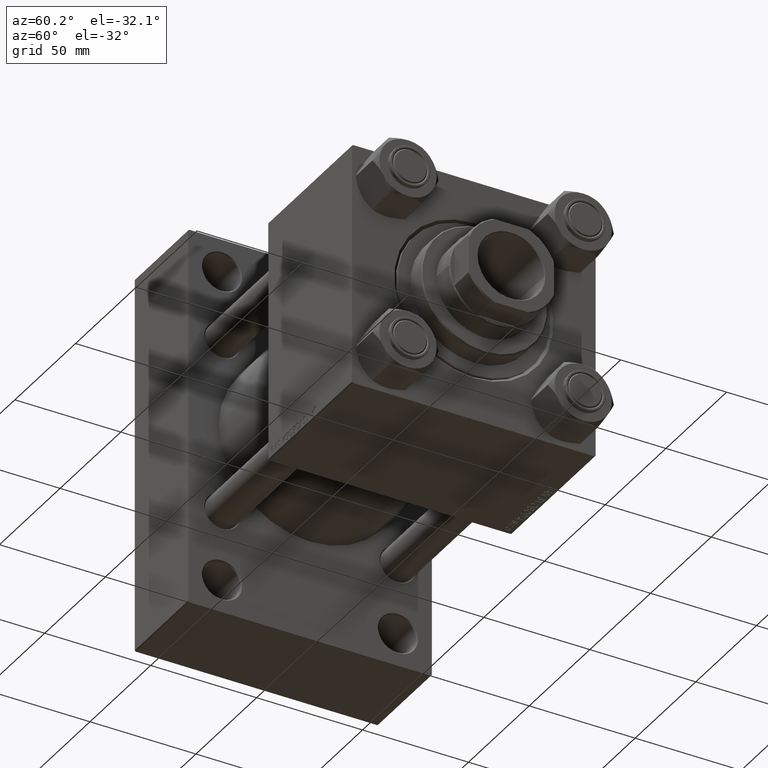
[diagram: clean part render]
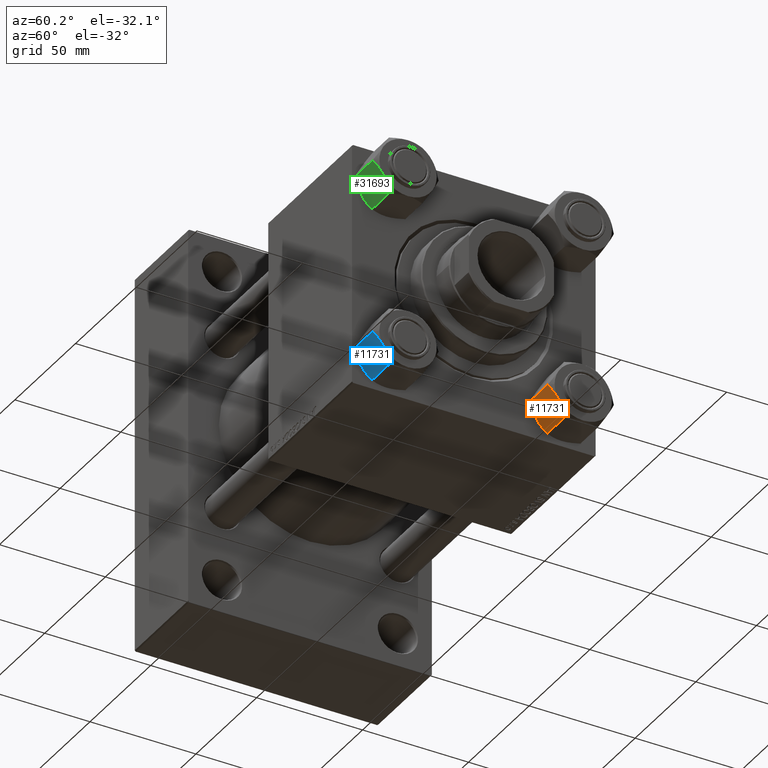
[diagram: same view with three faces highlighted in distinct colors, each labeled with its STEP entity id]
A machine part, auxiliary view with three faces highlighted in distinct colors.
Their STEP definitions:

[orange] entity #11731 — the highlighted planar face has unit normal (0, 0.866, 0.5).
#196 = ORIENTED_EDGE ( 'NONE', *, *, #36864, .F. ) ;
#669 = B_SPLINE_CURVE_WITH_KNOTS ( 'NONE', 3,
 ( #4511, #36553, #28643, #13105, #44208, #6219, #13615, #13355 ),
 .UNSPECIFIED., .F., .F.,
 ( 4, 2, 2, 4 ),
 ( 0.007890825462474418753, 0.01181022244528552589, 0.01376992093669107686, 0.01572961942809662783 ),
 .UNSPECIFIED. ) ;
#2532 = FACE_OUTER_BOUND ( 'NONE', #39255, .T. ) ;
#2647 = VERTEX_POINT ( 'NONE', #9838 ) ;
#2695 = EDGE_CURVE ( 'NONE', #14322, #46245, #34271, .T. ) ;
#2709 = DIRECTION ( 'NONE',  ( -0.000000000000000000, -0.000000000000000000, 1.000000000000000000 ) ) ;
#2737 = ORIENTED_EDGE ( 'NONE', *, *, #24244, .F. ) ;
#2991 = CARTESIAN_POINT ( 'NONE',  ( 15.52647173767731736, 0.1619957022865213259, -2.000000000000000000 ) ) ;
#3117 = ORIENTED_EDGE ( 'NONE', *, *, #7679, .F. ) ;
#3380 = DIRECTION ( 'NONE',  ( -0.4999999999999999445, 0.8660254037844387076, 0.000000000000000000 ) ) ;
#3491 = CARTESIAN_POINT ( 'NONE',  ( 14.92760668674624469, 1.199260397376465725, -1.411989271640069710 ) ) ;
#4511 = CARTESIAN_POINT ( 'NONE',  ( 11.71499999999999808, 6.763658403556465082, 0.000000000000000000 ) ) ;
#4770 = CARTESIAN_POINT ( 'NONE',  ( 8.502393313253767460, 12.32805640973646710, -16.58801072835993295 ) ) ;
#6219 = CARTESIAN_POINT ( 'NONE',  ( 8.506059550806631009, 12.32170630002228506, -1.434462921875004460 ) ) ;
#7679 = EDGE_CURVE ( 'NONE', #39784, #44668, #17502, .T. ) ;
#7861 = ORIENTED_EDGE ( 'NONE', *, *, #2695, .F. ) ;
#8161 = LINE ( 'NONE', #27777, #29406 ) ;
#8523 = VERTEX_POINT ( 'NONE', #20737 ) ;
#8566 = CARTESIAN_POINT ( 'NONE',  ( 14.31545111198821019, 2.259544954993908394, -0.9142282604026981119 ) ) ;
#8582 = ORIENTED_EDGE ( 'NONE', *, *, #41203, .F. ) ;
#8941 = CARTESIAN_POINT ( 'NONE',  ( 15.52647173767731736, 0.1619957022865213259, -16.00000000000000000 ) ) ;
#9224 = CARTESIAN_POINT ( 'NONE',  ( 7.903528262322689457, 13.36532110482641045, -2.000000000000000000 ) ) ;
#9329 = CARTESIAN_POINT ( 'NONE',  ( 11.71499999999999808, 6.763658403556465082, 0.000000000000000000 ) ) ;
#9536 = DIRECTION ( 'NONE',  ( -0.000000000000000000, -0.000000000000000000, 1.000000000000000000 ) ) ;
#9838 = CARTESIAN_POINT ( 'NONE',  ( 7.903528262322689457, 13.36532110482641045, -16.00000000000000000 ) ) ;
#10635 = AXIS2_PLACEMENT_3D ( 'NONE', #33098, #37443, #48938 ) ;
#10811 = CARTESIAN_POINT ( 'NONE',  ( 15.62000000000000455, -1.379485931020374819E-15, -16.00000000000000000 ) ) ;
#11731 = ADVANCED_FACE ( 'NONE', ( #2532 ), #17575, .F. ) ;
#12902 = CARTESIAN_POINT ( 'NONE',  ( 9.114548888011798411, 11.26777185211902221, -17.08577173959729478 ) ) ;
#13105 = CARTESIAN_POINT ( 'NONE',  ( 9.439480280627266851, 10.70497417113491245, -0.7317196846281172062 ) ) ;
#13141 = CARTESIAN_POINT ( 'NONE',  ( 11.71499999999999808, 6.763658403556465082, 0.000000000000000000 ) ) ;
#13355 = CARTESIAN_POINT ( 'NONE',  ( 7.903528262322689457, 13.36532110482641045, -2.000000000000000000 ) ) ;
#13513 = CARTESIAN_POINT ( 'NONE',  ( 14.92394044919337937, 1.205610507090647987, -16.56553707812500065 ) ) ;
#13615 = CARTESIAN_POINT ( 'NONE',  ( 8.202637790192657263, 12.84724820552769486, -1.706311779141446383 ) ) ;
#13761 = EDGE_CURVE ( 'NONE', #8523, #2647, #8161, .T. ) ;
#14322 = VERTEX_POINT ( 'NONE', #9224 ) ;
#14667 = CARTESIAN_POINT ( 'NONE',  ( 7.810000000000001386, 13.52731680711293905, -1.999999999999998224 ) ) ;
#15375 = VECTOR ( 'NONE', #29465, 999.9999999999998863 ) ;
#15715 = CARTESIAN_POINT ( 'NONE',  ( 10.38662926516872886, 9.064464007571846338, -17.75691532989869614 ) ) ;
#17091 = CARTESIAN_POINT ( 'NONE',  ( 14.30591678195075467, 2.276058899034909544, -17.05261278537717828 ) ) ;
#17146 = B_SPLINE_CURVE_WITH_KNOTS ( 'NONE', 3,
 ( #28191, #4770, #12902, #32262, #15715, #27694, #20307, #38916 ),
 .UNSPECIFIED., .F., .F.,
 ( 4, 2, 2, 4 ),
 ( 4.472842641813524291E-07, 0.003945636373369291842, 0.005918230917921843588, 0.007890825462474394467 ),
 .UNSPECIFIED. ) ;
#17502 = LINE ( 'NONE', #49110, #15375 ) ;
#17575 = PLANE ( 'NONE',  #10635 ) ;
#17593 = CARTESIAN_POINT ( 'NONE',  ( 13.02784502466562877, 4.489744118371592485, -17.80281335400753662 ) ) ;
#18038 = ORIENTED_EDGE ( 'NONE', *, *, #22998, .F. ) ;
#18982 = B_SPLINE_CURVE_WITH_KNOTS ( 'NONE', 3,
 ( #20650, #25231, #17593, #32620, #17091, #13513, #24972, #8941 ),
 .UNSPECIFIED., .F., .F.,
 ( 4, 2, 2, 4 ),
 ( 0.007890825462474394467, 0.01181022244528549814, 0.01376992093669104911, 0.01572961942809660008 ),
 .UNSPECIFIED. ) ;
#19380 = DIRECTION ( 'NONE',  ( 0.4999999999999999445, -0.8660254037844387076, 0.000000000000000000 ) ) ;
#19413 = EDGE_CURVE ( 'NONE', #2647, #41897, #17146, .T. ) ;
#20307 = CARTESIAN_POINT ( 'NONE',  ( 11.38181071908714692, 7.340759166634869715, -17.99999999999998224 ) ) ;
#20530 = EDGE_CURVE ( 'NONE', #42216, #14322, #669, .T. ) ;
#20650 = CARTESIAN_POINT ( 'NONE',  ( 11.71499999999999453, 6.763658403556462417, -18.00000000000000000 ) ) ;
#20737 = CARTESIAN_POINT ( 'NONE',  ( 7.810000000000000497, 13.52731680711293905, -16.00000000000000000 ) ) ;
#21509 = LINE ( 'NONE', #41631, #35338 ) ;
#21828 = ORIENTED_EDGE ( 'NONE', *, *, #13761, .F. ) ;
#22998 = EDGE_CURVE ( 'NONE', #29911, #40525, #41862, .T. ) ;
#24244 = EDGE_CURVE ( 'NONE', #44668, #29911, #37625, .T. ) ;
#24354 = CARTESIAN_POINT ( 'NONE',  ( 13.04337073483127973, 4.462852799541090043, -0.2430846701013048838 ) ) ;
#24972 = CARTESIAN_POINT ( 'NONE',  ( 15.22736220980734778, 0.6800686015852424049, -16.29368822085855584 ) ) ;
#25231 = CARTESIAN_POINT ( 'NONE',  ( 12.37702203890362362, 5.617002596445057172, -17.99999999999999645 ) ) ;
#25644 = CARTESIAN_POINT ( 'NONE',  ( 15.62000000000000455, -1.379485931020374819E-15, -18.00000000000000000 ) ) ;
#26459 = B_SPLINE_CURVE_WITH_KNOTS ( 'NONE', 3,
 ( #2991, #3491, #8566, #28177, #24354, #48082, #43242, #13141 ),
 .UNSPECIFIED., .F., .F.,
 ( 4, 2, 2, 4 ),
 ( 4.472842642021966394E-07, 0.003945636373369309190, 0.005918230917921864405, 0.007890825462474418753 ),
 .UNSPECIFIED. ) ;
#27162 = VECTOR ( 'NONE', #3380, 999.9999999999998863 ) ;
#27694 = CARTESIAN_POINT ( 'NONE',  ( 11.04378428799595468, 7.926238119586002995, -17.94910618364697541 ) ) ;
#27777 = CARTESIAN_POINT ( 'NONE',  ( 7.810000000000001386, 13.52731680711293905, -16.00000000000000000 ) ) ;
#28177 = CARTESIAN_POINT ( 'NONE',  ( 13.36540581434586628, 3.905071680002331735, -0.3836066851120656374 ) ) ;
#28191 = CARTESIAN_POINT ( 'NONE',  ( 7.903528262322689457, 13.36532110482641045, -16.00000000000000000 ) ) ;
#28643 = CARTESIAN_POINT ( 'NONE',  ( 10.40215497533438338, 9.037572688741340343, -0.1971866459924613291 ) ) ;
#28844 = VECTOR ( 'NONE', #2709, 1000.000000000000000 ) ;
#29406 = VECTOR ( 'NONE', #19380, 999.9999999999998863 ) ;
#29465 = DIRECTION ( 'NONE',  ( 0.4999999999999999445, -0.8660254037844387076, 0.000000000000000000 ) ) ;
#29540 = ORIENTED_EDGE ( 'NONE', *, *, #19413, .F. ) ;
#29911 = VERTEX_POINT ( 'NONE', #33609 ) ;
#30532 = ORIENTED_EDGE ( 'NONE', *, *, #20530, .F. ) ;
#32262 = CARTESIAN_POINT ( 'NONE',  ( 10.06459418565413166, 9.622245127110598872, -17.61639331488792948 ) ) ;
#32620 = CARTESIAN_POINT ( 'NONE',  ( 13.99051971937273464, 2.822342635978018599, -17.26828031537187513 ) ) ;
#33098 = CARTESIAN_POINT ( 'NONE',  ( 7.810000000000001386, 13.52731680711293905, -18.00000000000000000 ) ) ;
#33609 = CARTESIAN_POINT ( 'NONE',  ( 15.62000000000000455, -1.379485931020374819E-15, -1.999999999999998224 ) ) ;
#34271 = LINE ( 'NONE', #14667, #38905 ) ;
#35015 = DIRECTION ( 'NONE',  ( -0.4999999999999999445, 0.8660254037844387076, 0.000000000000000000 ) ) ;
#35338 = VECTOR ( 'NONE', #9536, 1000.000000000000000 ) ;
#36553 = CARTESIAN_POINT ( 'NONE',  ( 11.05297796109638320, 7.910314210667882762, -6.479802046495397594E-15 ) ) ;
#36864 = EDGE_CURVE ( 'NONE', #41897, #39784, #18982, .T. ) ;
#37443 = DIRECTION ( 'NONE',  ( -0.8660254037844387076, -0.4999999999999999445, 0.000000000000000000 ) ) ;
#37625 = LINE ( 'NONE', #25644, #28844 ) ;
#38465 = CARTESIAN_POINT ( 'NONE',  ( 7.810000000000000497, 13.52731680711293905, -1.999999999999998224 ) ) ;
#38656 = CARTESIAN_POINT ( 'NONE',  ( 15.52647173767731736, 0.1619957022865213259, -16.00000000000000000 ) ) ;
#38905 = VECTOR ( 'NONE', #35015, 999.9999999999998863 ) ;
#38916 = CARTESIAN_POINT ( 'NONE',  ( 11.71499999999999453, 6.763658403556462417, -18.00000000000000000 ) ) ;
#39255 = EDGE_LOOP ( 'NONE', ( #21828, #47655, #7861, #30532, #8582, #18038, #2737, #3117, #196, #29540 ) ) ;
#39784 = VERTEX_POINT ( 'NONE', #38656 ) ;
#40525 = VERTEX_POINT ( 'NONE', #40993 ) ;
#40979 = EDGE_CURVE ( 'NONE', #8523, #46245, #21509, .T. ) ;
#40993 = CARTESIAN_POINT ( 'NONE',  ( 15.52647173767731736, 0.1619957022865213259, -2.000000000000000000 ) ) ;
#41203 = EDGE_CURVE ( 'NONE', #40525, #42216, #26459, .T. ) ;
#41631 = CARTESIAN_POINT ( 'NONE',  ( 7.810000000000001386, 13.52731680711293905, -18.00000000000000000 ) ) ;
#41862 = LINE ( 'NONE', #49274, #27162 ) ;
#41897 = VERTEX_POINT ( 'NONE', #47215 ) ;
#42216 = VERTEX_POINT ( 'NONE', #9329 ) ;
#43242 = CARTESIAN_POINT ( 'NONE',  ( 12.04818928091285990, 6.186557640478066666, -6.520459627963604010E-15 ) ) ;
#44208 = CARTESIAN_POINT ( 'NONE',  ( 9.124083218049248600, 11.25125790807802062, -0.9473872146228176083 ) ) ;
#44668 = VERTEX_POINT ( 'NONE', #10811 ) ;
#46245 = VERTEX_POINT ( 'NONE', #38465 ) ;
#47215 = CARTESIAN_POINT ( 'NONE',  ( 11.71499999999999453, 6.763658403556462417, -18.00000000000000000 ) ) ;
#47655 = ORIENTED_EDGE ( 'NONE', *, *, #40979, .T. ) ;
#48082 = CARTESIAN_POINT ( 'NONE',  ( 12.38621571200405569, 5.601078687526934274, -0.05089381635302299423 ) ) ;
#48938 = DIRECTION ( 'NONE',  ( 0.4999999999999998890, -0.8660254037844385966, 0.000000000000000000 ) ) ;
#49110 = CARTESIAN_POINT ( 'NONE',  ( 7.810000000000001386, 13.52731680711293905, -16.00000000000000000 ) ) ;
#49274 = CARTESIAN_POINT ( 'NONE',  ( 7.810000000000001386, 13.52731680711293905, -1.999999999999998224 ) ) ;

[blue] entity #11731 — the highlighted planar face has unit normal (-0, 0.866, 0.5).
#196 = ORIENTED_EDGE ( 'NONE', *, *, #36864, .F. ) ;
#669 = B_SPLINE_CURVE_WITH_KNOTS ( 'NONE', 3,
 ( #4511, #36553, #28643, #13105, #44208, #6219, #13615, #13355 ),
 .UNSPECIFIED., .F., .F.,
 ( 4, 2, 2, 4 ),
 ( 0.007890825462474418753, 0.01181022244528552589, 0.01376992093669107686, 0.01572961942809662783 ),
 .UNSPECIFIED. ) ;
#2532 = FACE_OUTER_BOUND ( 'NONE', #39255, .T. ) ;
#2647 = VERTEX_POINT ( 'NONE', #9838 ) ;
#2695 = EDGE_CURVE ( 'NONE', #14322, #46245, #34271, .T. ) ;
#2709 = DIRECTION ( 'NONE',  ( -0.000000000000000000, -0.000000000000000000, 1.000000000000000000 ) ) ;
#2737 = ORIENTED_EDGE ( 'NONE', *, *, #24244, .F. ) ;
#2991 = CARTESIAN_POINT ( 'NONE',  ( 15.52647173767731736, 0.1619957022865213259, -2.000000000000000000 ) ) ;
#3117 = ORIENTED_EDGE ( 'NONE', *, *, #7679, .F. ) ;
#3380 = DIRECTION ( 'NONE',  ( -0.4999999999999999445, 0.8660254037844387076, 0.000000000000000000 ) ) ;
#3491 = CARTESIAN_POINT ( 'NONE',  ( 14.92760668674624469, 1.199260397376465725, -1.411989271640069710 ) ) ;
#4511 = CARTESIAN_POINT ( 'NONE',  ( 11.71499999999999808, 6.763658403556465082, 0.000000000000000000 ) ) ;
#4770 = CARTESIAN_POINT ( 'NONE',  ( 8.502393313253767460, 12.32805640973646710, -16.58801072835993295 ) ) ;
#6219 = CARTESIAN_POINT ( 'NONE',  ( 8.506059550806631009, 12.32170630002228506, -1.434462921875004460 ) ) ;
#7679 = EDGE_CURVE ( 'NONE', #39784, #44668, #17502, .T. ) ;
#7861 = ORIENTED_EDGE ( 'NONE', *, *, #2695, .F. ) ;
#8161 = LINE ( 'NONE', #27777, #29406 ) ;
#8523 = VERTEX_POINT ( 'NONE', #20737 ) ;
#8566 = CARTESIAN_POINT ( 'NONE',  ( 14.31545111198821019, 2.259544954993908394, -0.9142282604026981119 ) ) ;
#8582 = ORIENTED_EDGE ( 'NONE', *, *, #41203, .F. ) ;
#8941 = CARTESIAN_POINT ( 'NONE',  ( 15.52647173767731736, 0.1619957022865213259, -16.00000000000000000 ) ) ;
#9224 = CARTESIAN_POINT ( 'NONE',  ( 7.903528262322689457, 13.36532110482641045, -2.000000000000000000 ) ) ;
#9329 = CARTESIAN_POINT ( 'NONE',  ( 11.71499999999999808, 6.763658403556465082, 0.000000000000000000 ) ) ;
#9536 = DIRECTION ( 'NONE',  ( -0.000000000000000000, -0.000000000000000000, 1.000000000000000000 ) ) ;
#9838 = CARTESIAN_POINT ( 'NONE',  ( 7.903528262322689457, 13.36532110482641045, -16.00000000000000000 ) ) ;
#10635 = AXIS2_PLACEMENT_3D ( 'NONE', #33098, #37443, #48938 ) ;
#10811 = CARTESIAN_POINT ( 'NONE',  ( 15.62000000000000455, -1.379485931020374819E-15, -16.00000000000000000 ) ) ;
#11731 = ADVANCED_FACE ( 'NONE', ( #2532 ), #17575, .F. ) ;
#12902 = CARTESIAN_POINT ( 'NONE',  ( 9.114548888011798411, 11.26777185211902221, -17.08577173959729478 ) ) ;
#13105 = CARTESIAN_POINT ( 'NONE',  ( 9.439480280627266851, 10.70497417113491245, -0.7317196846281172062 ) ) ;
#13141 = CARTESIAN_POINT ( 'NONE',  ( 11.71499999999999808, 6.763658403556465082, 0.000000000000000000 ) ) ;
#13355 = CARTESIAN_POINT ( 'NONE',  ( 7.903528262322689457, 13.36532110482641045, -2.000000000000000000 ) ) ;
#13513 = CARTESIAN_POINT ( 'NONE',  ( 14.92394044919337937, 1.205610507090647987, -16.56553707812500065 ) ) ;
#13615 = CARTESIAN_POINT ( 'NONE',  ( 8.202637790192657263, 12.84724820552769486, -1.706311779141446383 ) ) ;
#13761 = EDGE_CURVE ( 'NONE', #8523, #2647, #8161, .T. ) ;
#14322 = VERTEX_POINT ( 'NONE', #9224 ) ;
#14667 = CARTESIAN_POINT ( 'NONE',  ( 7.810000000000001386, 13.52731680711293905, -1.999999999999998224 ) ) ;
#15375 = VECTOR ( 'NONE', #29465, 999.9999999999998863 ) ;
#15715 = CARTESIAN_POINT ( 'NONE',  ( 10.38662926516872886, 9.064464007571846338, -17.75691532989869614 ) ) ;
#17091 = CARTESIAN_POINT ( 'NONE',  ( 14.30591678195075467, 2.276058899034909544, -17.05261278537717828 ) ) ;
#17146 = B_SPLINE_CURVE_WITH_KNOTS ( 'NONE', 3,
 ( #28191, #4770, #12902, #32262, #15715, #27694, #20307, #38916 ),
 .UNSPECIFIED., .F., .F.,
 ( 4, 2, 2, 4 ),
 ( 4.472842641813524291E-07, 0.003945636373369291842, 0.005918230917921843588, 0.007890825462474394467 ),
 .UNSPECIFIED. ) ;
#17502 = LINE ( 'NONE', #49110, #15375 ) ;
#17575 = PLANE ( 'NONE',  #10635 ) ;
#17593 = CARTESIAN_POINT ( 'NONE',  ( 13.02784502466562877, 4.489744118371592485, -17.80281335400753662 ) ) ;
#18038 = ORIENTED_EDGE ( 'NONE', *, *, #22998, .F. ) ;
#18982 = B_SPLINE_CURVE_WITH_KNOTS ( 'NONE', 3,
 ( #20650, #25231, #17593, #32620, #17091, #13513, #24972, #8941 ),
 .UNSPECIFIED., .F., .F.,
 ( 4, 2, 2, 4 ),
 ( 0.007890825462474394467, 0.01181022244528549814, 0.01376992093669104911, 0.01572961942809660008 ),
 .UNSPECIFIED. ) ;
#19380 = DIRECTION ( 'NONE',  ( 0.4999999999999999445, -0.8660254037844387076, 0.000000000000000000 ) ) ;
#19413 = EDGE_CURVE ( 'NONE', #2647, #41897, #17146, .T. ) ;
#20307 = CARTESIAN_POINT ( 'NONE',  ( 11.38181071908714692, 7.340759166634869715, -17.99999999999998224 ) ) ;
#20530 = EDGE_CURVE ( 'NONE', #42216, #14322, #669, .T. ) ;
#20650 = CARTESIAN_POINT ( 'NONE',  ( 11.71499999999999453, 6.763658403556462417, -18.00000000000000000 ) ) ;
#20737 = CARTESIAN_POINT ( 'NONE',  ( 7.810000000000000497, 13.52731680711293905, -16.00000000000000000 ) ) ;
#21509 = LINE ( 'NONE', #41631, #35338 ) ;
#21828 = ORIENTED_EDGE ( 'NONE', *, *, #13761, .F. ) ;
#22998 = EDGE_CURVE ( 'NONE', #29911, #40525, #41862, .T. ) ;
#24244 = EDGE_CURVE ( 'NONE', #44668, #29911, #37625, .T. ) ;
#24354 = CARTESIAN_POINT ( 'NONE',  ( 13.04337073483127973, 4.462852799541090043, -0.2430846701013048838 ) ) ;
#24972 = CARTESIAN_POINT ( 'NONE',  ( 15.22736220980734778, 0.6800686015852424049, -16.29368822085855584 ) ) ;
#25231 = CARTESIAN_POINT ( 'NONE',  ( 12.37702203890362362, 5.617002596445057172, -17.99999999999999645 ) ) ;
#25644 = CARTESIAN_POINT ( 'NONE',  ( 15.62000000000000455, -1.379485931020374819E-15, -18.00000000000000000 ) ) ;
#26459 = B_SPLINE_CURVE_WITH_KNOTS ( 'NONE', 3,
 ( #2991, #3491, #8566, #28177, #24354, #48082, #43242, #13141 ),
 .UNSPECIFIED., .F., .F.,
 ( 4, 2, 2, 4 ),
 ( 4.472842642021966394E-07, 0.003945636373369309190, 0.005918230917921864405, 0.007890825462474418753 ),
 .UNSPECIFIED. ) ;
#27162 = VECTOR ( 'NONE', #3380, 999.9999999999998863 ) ;
#27694 = CARTESIAN_POINT ( 'NONE',  ( 11.04378428799595468, 7.926238119586002995, -17.94910618364697541 ) ) ;
#27777 = CARTESIAN_POINT ( 'NONE',  ( 7.810000000000001386, 13.52731680711293905, -16.00000000000000000 ) ) ;
#28177 = CARTESIAN_POINT ( 'NONE',  ( 13.36540581434586628, 3.905071680002331735, -0.3836066851120656374 ) ) ;
#28191 = CARTESIAN_POINT ( 'NONE',  ( 7.903528262322689457, 13.36532110482641045, -16.00000000000000000 ) ) ;
#28643 = CARTESIAN_POINT ( 'NONE',  ( 10.40215497533438338, 9.037572688741340343, -0.1971866459924613291 ) ) ;
#28844 = VECTOR ( 'NONE', #2709, 1000.000000000000000 ) ;
#29406 = VECTOR ( 'NONE', #19380, 999.9999999999998863 ) ;
#29465 = DIRECTION ( 'NONE',  ( 0.4999999999999999445, -0.8660254037844387076, 0.000000000000000000 ) ) ;
#29540 = ORIENTED_EDGE ( 'NONE', *, *, #19413, .F. ) ;
#29911 = VERTEX_POINT ( 'NONE', #33609 ) ;
#30532 = ORIENTED_EDGE ( 'NONE', *, *, #20530, .F. ) ;
#32262 = CARTESIAN_POINT ( 'NONE',  ( 10.06459418565413166, 9.622245127110598872, -17.61639331488792948 ) ) ;
#32620 = CARTESIAN_POINT ( 'NONE',  ( 13.99051971937273464, 2.822342635978018599, -17.26828031537187513 ) ) ;
#33098 = CARTESIAN_POINT ( 'NONE',  ( 7.810000000000001386, 13.52731680711293905, -18.00000000000000000 ) ) ;
#33609 = CARTESIAN_POINT ( 'NONE',  ( 15.62000000000000455, -1.379485931020374819E-15, -1.999999999999998224 ) ) ;
#34271 = LINE ( 'NONE', #14667, #38905 ) ;
#35015 = DIRECTION ( 'NONE',  ( -0.4999999999999999445, 0.8660254037844387076, 0.000000000000000000 ) ) ;
#35338 = VECTOR ( 'NONE', #9536, 1000.000000000000000 ) ;
#36553 = CARTESIAN_POINT ( 'NONE',  ( 11.05297796109638320, 7.910314210667882762, -6.479802046495397594E-15 ) ) ;
#36864 = EDGE_CURVE ( 'NONE', #41897, #39784, #18982, .T. ) ;
#37443 = DIRECTION ( 'NONE',  ( -0.8660254037844387076, -0.4999999999999999445, 0.000000000000000000 ) ) ;
#37625 = LINE ( 'NONE', #25644, #28844 ) ;
#38465 = CARTESIAN_POINT ( 'NONE',  ( 7.810000000000000497, 13.52731680711293905, -1.999999999999998224 ) ) ;
#38656 = CARTESIAN_POINT ( 'NONE',  ( 15.52647173767731736, 0.1619957022865213259, -16.00000000000000000 ) ) ;
#38905 = VECTOR ( 'NONE', #35015, 999.9999999999998863 ) ;
#38916 = CARTESIAN_POINT ( 'NONE',  ( 11.71499999999999453, 6.763658403556462417, -18.00000000000000000 ) ) ;
#39255 = EDGE_LOOP ( 'NONE', ( #21828, #47655, #7861, #30532, #8582, #18038, #2737, #3117, #196, #29540 ) ) ;
#39784 = VERTEX_POINT ( 'NONE', #38656 ) ;
#40525 = VERTEX_POINT ( 'NONE', #40993 ) ;
#40979 = EDGE_CURVE ( 'NONE', #8523, #46245, #21509, .T. ) ;
#40993 = CARTESIAN_POINT ( 'NONE',  ( 15.52647173767731736, 0.1619957022865213259, -2.000000000000000000 ) ) ;
#41203 = EDGE_CURVE ( 'NONE', #40525, #42216, #26459, .T. ) ;
#41631 = CARTESIAN_POINT ( 'NONE',  ( 7.810000000000001386, 13.52731680711293905, -18.00000000000000000 ) ) ;
#41862 = LINE ( 'NONE', #49274, #27162 ) ;
#41897 = VERTEX_POINT ( 'NONE', #47215 ) ;
#42216 = VERTEX_POINT ( 'NONE', #9329 ) ;
#43242 = CARTESIAN_POINT ( 'NONE',  ( 12.04818928091285990, 6.186557640478066666, -6.520459627963604010E-15 ) ) ;
#44208 = CARTESIAN_POINT ( 'NONE',  ( 9.124083218049248600, 11.25125790807802062, -0.9473872146228176083 ) ) ;
#44668 = VERTEX_POINT ( 'NONE', #10811 ) ;
#46245 = VERTEX_POINT ( 'NONE', #38465 ) ;
#47215 = CARTESIAN_POINT ( 'NONE',  ( 11.71499999999999453, 6.763658403556462417, -18.00000000000000000 ) ) ;
#47655 = ORIENTED_EDGE ( 'NONE', *, *, #40979, .T. ) ;
#48082 = CARTESIAN_POINT ( 'NONE',  ( 12.38621571200405569, 5.601078687526934274, -0.05089381635302299423 ) ) ;
#48938 = DIRECTION ( 'NONE',  ( 0.4999999999999998890, -0.8660254037844385966, 0.000000000000000000 ) ) ;
#49110 = CARTESIAN_POINT ( 'NONE',  ( 7.810000000000001386, 13.52731680711293905, -16.00000000000000000 ) ) ;
#49274 = CARTESIAN_POINT ( 'NONE',  ( 7.810000000000001386, 13.52731680711293905, -1.999999999999998224 ) ) ;

[green] entity #31693 — the highlighted planar face has unit normal (-0, 0.866, 0.5).
#137 = CARTESIAN_POINT ( 'NONE',  ( -11.71500000000000163, -6.763658403556456200, 0.000000000000000000 ) ) ;
#267 = DIRECTION ( 'NONE',  ( -0.4999999999999994449, 0.8660254037844390407, 0.000000000000000000 ) ) ;
#778 = CARTESIAN_POINT ( 'NONE',  ( -14.31545111198821019, -2.259544954993887078, -0.9142282604026940040 ) ) ;
#1271 = CARTESIAN_POINT ( 'NONE',  ( -11.71500000000000163, -6.763658403556456200, 0.000000000000000000 ) ) ;
#1338 = EDGE_CURVE ( 'NONE', #19690, #1593, #36382, .T. ) ;
#1593 = VERTEX_POINT ( 'NONE', #5074 ) ;
#2432 = CARTESIAN_POINT ( 'NONE',  ( -14.30591678195075467, -2.276058899034888672, -17.05261278537718539 ) ) ;
#2597 = EDGE_LOOP ( 'NONE', ( #16193, #33030, #48680, #24158, #23959, #3768, #9883, #44778, #30093, #7650 ) ) ;
#3768 = ORIENTED_EDGE ( 'NONE', *, *, #34206, .F. ) ;
#5074 = CARTESIAN_POINT ( 'NONE',  ( -11.71499999999999986, -6.763658403556454424, -18.00000000000000000 ) ) ;
#5245 = VERTEX_POINT ( 'NONE', #40158 ) ;
#7088 = VERTEX_POINT ( 'NONE', #47912 ) ;
#7260 = CARTESIAN_POINT ( 'NONE',  ( -15.22736220980735489, -0.6800686015852174249, -16.29368822085854873 ) ) ;
#7650 = ORIENTED_EDGE ( 'NONE', *, *, #1338, .F. ) ;
#8058 = B_SPLINE_CURVE_WITH_KNOTS ( 'NONE', 3,
 ( #20401, #23962, #778, #15822, #24217, #32108, #12497, #1271 ),
 .UNSPECIFIED., .F., .F.,
 ( 4, 2, 2, 4 ),
 ( 4.472842641998575579E-07, 0.003945636373369311792, 0.005918230917921869609, 0.007890825462474427426 ),
 .UNSPECIFIED. ) ;
#9010 = FACE_OUTER_BOUND ( 'NONE', #2597, .T. ) ;
#9223 = DIRECTION ( 'NONE',  ( 0.4999999999999994449, -0.8660254037844390407, 0.000000000000000000 ) ) ;
#9883 = ORIENTED_EDGE ( 'NONE', *, *, #12453, .F. ) ;
#10142 = CARTESIAN_POINT ( 'NONE',  ( -11.05297796109638320, -7.910314210667868551, 1.084202172485506160E-16 ) ) ;
#10306 = LINE ( 'NONE', #25844, #33432 ) ;
#10314 = LINE ( 'NONE', #30184, #24974 ) ;
#10388 = CARTESIAN_POINT ( 'NONE',  ( -8.202637790192653711, -12.84724820552769664, -1.706311779141443496 ) ) ;
#10720 = CARTESIAN_POINT ( 'NONE',  ( -11.71499999999999986, -6.763658403556454424, -18.00000000000000000 ) ) ;
#11624 = B_SPLINE_CURVE_WITH_KNOTS ( 'NONE', 3,
 ( #48902, #10142, #14218, #21859, #29745, #45310, #10388, #25928 ),
 .UNSPECIFIED., .F., .F.,
 ( 4, 2, 2, 4 ),
 ( 0.007890825462474427426, 0.01181022244528554151, 0.01376992093669109421, 0.01572961942809664865 ),
 .UNSPECIFIED. ) ;
#12453 = EDGE_CURVE ( 'NONE', #42662, #33473, #10306, .T. ) ;
#12497 = CARTESIAN_POINT ( 'NONE',  ( -12.04818928091285635, -6.186557640478053344, -6.945670167485262780E-17 ) ) ;
#12594 = CARTESIAN_POINT ( 'NONE',  ( -7.903528262322684128, -13.36532110482641400, -16.00000000000000000 ) ) ;
#13646 = AXIS2_PLACEMENT_3D ( 'NONE', #24537, #20725, #28872 ) ;
#14218 = CARTESIAN_POINT ( 'NONE',  ( -10.40215497533437805, -9.037572688741335014, -0.1971866459924560555 ) ) ;
#14997 = VERTEX_POINT ( 'NONE', #137 ) ;
#15474 = CARTESIAN_POINT ( 'NONE',  ( -7.809999999999999609, -13.52731680711293727, -18.00000000000000000 ) ) ;
#15764 = CARTESIAN_POINT ( 'NONE',  ( -7.809999999999999609, -13.52731680711293727, -1.999999999999998224 ) ) ;
#15822 = CARTESIAN_POINT ( 'NONE',  ( -13.36540581434586628, -3.905071680002313084, -0.3836066851120598087 ) ) ;
#15983 = CARTESIAN_POINT ( 'NONE',  ( -15.52647173767731914, -0.1619957022864979002, -2.000000000000000000 ) ) ;
#16193 = ORIENTED_EDGE ( 'NONE', *, *, #44895, .F. ) ;
#16853 = CARTESIAN_POINT ( 'NONE',  ( -8.502393313253762130, -12.32805640973646710, -16.58801072835992585 ) ) ;
#17476 = EDGE_CURVE ( 'NONE', #47315, #14997, #8058, .T. ) ;
#18463 = CARTESIAN_POINT ( 'NONE',  ( -12.37702203890362362, -5.617002596445043849, -17.99999999999999645 ) ) ;
#18726 = CARTESIAN_POINT ( 'NONE',  ( -15.52647173767731914, -0.1619957022864979002, -16.00000000000000000 ) ) ;
#18749 = VERTEX_POINT ( 'NONE', #15764 ) ;
#18794 = LINE ( 'NONE', #15474, #24721 ) ;
#18902 = LINE ( 'NONE', #46182, #37933 ) ;
#19690 = VERTEX_POINT ( 'NONE', #12594 ) ;
#20401 = CARTESIAN_POINT ( 'NONE',  ( -15.52647173767731914, -0.1619957022864979002, -2.000000000000000000 ) ) ;
#20675 = CARTESIAN_POINT ( 'NONE',  ( -7.903528262322684128, -13.36532110482641400, -16.00000000000000000 ) ) ;
#20725 = DIRECTION ( 'NONE',  ( 0.8660254037844390407, 0.4999999999999994449, 0.000000000000000000 ) ) ;
#21654 = CARTESIAN_POINT ( 'NONE',  ( -15.61999999999999567, 8.023367828467702033E-15, -1.999999999999998224 ) ) ;
#21751 = EDGE_CURVE ( 'NONE', #1593, #5245, #40737, .T. ) ;
#21859 = CARTESIAN_POINT ( 'NONE',  ( -9.439480280627266851, -10.70497417113491245, -0.7317196846281139866 ) ) ;
#23959 = ORIENTED_EDGE ( 'NONE', *, *, #17476, .F. ) ;
#23962 = CARTESIAN_POINT ( 'NONE',  ( -14.92760668674624469, -1.199260397376444409, -1.411989271640068155 ) ) ;
#24139 = LINE ( 'NONE', #43783, #44432 ) ;
#24158 = ORIENTED_EDGE ( 'NONE', *, *, #44063, .F. ) ;
#24217 = CARTESIAN_POINT ( 'NONE',  ( -13.04337073483127973, -4.462852799541074056, -0.2430846701012976674 ) ) ;
#24537 = CARTESIAN_POINT ( 'NONE',  ( -7.809999999999999609, -13.52731680711293727, -18.00000000000000000 ) ) ;
#24721 = VECTOR ( 'NONE', #49908, 1000.000000000000000 ) ;
#24742 = CARTESIAN_POINT ( 'NONE',  ( -10.38662926516872709, -9.064464007571841009, -17.75691532989870325 ) ) ;
#24974 = VECTOR ( 'NONE', #40907, 999.9999999999998863 ) ;
#25844 = CARTESIAN_POINT ( 'NONE',  ( -15.61999999999999567, 8.023367828467702033E-15, -18.00000000000000000 ) ) ;
#25928 = CARTESIAN_POINT ( 'NONE',  ( -7.903528262322684128, -13.36532110482641400, -2.000000000000000000 ) ) ;
#26255 = CARTESIAN_POINT ( 'NONE',  ( -11.38181071908714515, -7.340759166634855504, -17.99999999999998934 ) ) ;
#28592 = LINE ( 'NONE', #44152, #30725 ) ;
#28617 = PLANE ( 'NONE',  #13646 ) ;
#28872 = DIRECTION ( 'NONE',  ( -0.4999999999999993894, 0.8660254037844389297, 0.000000000000000000 ) ) ;
#29745 = CARTESIAN_POINT ( 'NONE',  ( -9.124083218049248600, -11.25125790807802595, -0.9473872146228143887 ) ) ;
#29805 = VERTEX_POINT ( 'NONE', #32364 ) ;
#30093 = ORIENTED_EDGE ( 'NONE', *, *, #21751, .F. ) ;
#30184 = CARTESIAN_POINT ( 'NONE',  ( -7.809999999999999609, -13.52731680711293727, -1.999999999999998224 ) ) ;
#30582 = CARTESIAN_POINT ( 'NONE',  ( -11.04378428799595291, -7.926238119585994113, -17.94910618364698252 ) ) ;
#30725 = VECTOR ( 'NONE', #9223, 999.9999999999998863 ) ;
#31029 = DIRECTION ( 'NONE',  ( -0.4999999999999994449, 0.8660254037844390407, 0.000000000000000000 ) ) ;
#31693 = ADVANCED_FACE ( 'NONE', ( #9010 ), #28617, .F. ) ;
#31709 = CARTESIAN_POINT ( 'NONE',  ( -15.61999999999999567, 8.023367828467702033E-15, -16.00000000000000000 ) ) ;
#32108 = CARTESIAN_POINT ( 'NONE',  ( -12.38621571200405569, -5.601078687526920064, -0.05089381635301479939 ) ) ;
#32364 = CARTESIAN_POINT ( 'NONE',  ( -7.809999999999999609, -13.52731680711293727, -16.00000000000000000 ) ) ;
#32394 = CARTESIAN_POINT ( 'NONE',  ( -9.114548888011793082, -11.26777185211902399, -17.08577173959729834 ) ) ;
#33030 = ORIENTED_EDGE ( 'NONE', *, *, #39792, .T. ) ;
#33432 = VECTOR ( 'NONE', #33731, 1000.000000000000000 ) ;
#33473 = VERTEX_POINT ( 'NONE', #21654 ) ;
#33731 = DIRECTION ( 'NONE',  ( -0.000000000000000000, -0.000000000000000000, 1.000000000000000000 ) ) ;
#34206 = EDGE_CURVE ( 'NONE', #33473, #47315, #10314, .T. ) ;
#36382 = B_SPLINE_CURVE_WITH_KNOTS ( 'NONE', 3,
 ( #20675, #16853, #32394, #47973, #24742, #30582, #26255, #10720 ),
 .UNSPECIFIED., .F., .F.,
 ( 4, 2, 2, 4 ),
 ( 4.472842641823326580E-07, 0.003945636373369299649, 0.005918230917921855731, 0.007890825462474411814 ),
 .UNSPECIFIED. ) ;
#37933 = VECTOR ( 'NONE', #267, 999.9999999999998863 ) ;
#38097 = CARTESIAN_POINT ( 'NONE',  ( -14.92394044919338292, -1.205610507090625561, -16.56553707812498999 ) ) ;
#39792 = EDGE_CURVE ( 'NONE', #29805, #18749, #18794, .T. ) ;
#40158 = CARTESIAN_POINT ( 'NONE',  ( -15.52647173767731914, -0.1619957022864979002, -16.00000000000000000 ) ) ;
#40737 = B_SPLINE_CURVE_WITH_KNOTS ( 'NONE', 3,
 ( #46257, #18463, #49584, #45748, #2432, #38097, #7260, #18726 ),
 .UNSPECIFIED., .F., .F.,
 ( 4, 2, 2, 4 ),
 ( 0.007890825462474411814, 0.01181022244528552416, 0.01376992093669107860, 0.01572961942809663477 ),
 .UNSPECIFIED. ) ;
#40907 = DIRECTION ( 'NONE',  ( 0.4999999999999994449, -0.8660254037844390407, 0.000000000000000000 ) ) ;
#42662 = VERTEX_POINT ( 'NONE', #31709 ) ;
#43783 = CARTESIAN_POINT ( 'NONE',  ( -7.809999999999999609, -13.52731680711293727, -16.00000000000000000 ) ) ;
#44063 = EDGE_CURVE ( 'NONE', #14997, #7088, #11624, .T. ) ;
#44152 = CARTESIAN_POINT ( 'NONE',  ( -7.809999999999999609, -13.52731680711293727, -1.999999999999998224 ) ) ;
#44199 = EDGE_CURVE ( 'NONE', #5245, #42662, #24139, .T. ) ;
#44432 = VECTOR ( 'NONE', #31029, 999.9999999999998863 ) ;
#44778 = ORIENTED_EDGE ( 'NONE', *, *, #44199, .F. ) ;
#44895 = EDGE_CURVE ( 'NONE', #29805, #19690, #18902, .T. ) ;
#45310 = CARTESIAN_POINT ( 'NONE',  ( -8.506059550806629233, -12.32170630002229217, -1.434462921875003572 ) ) ;
#45748 = CARTESIAN_POINT ( 'NONE',  ( -13.99051971937273464, -2.822342635978000391, -17.26828031537188224 ) ) ;
#46182 = CARTESIAN_POINT ( 'NONE',  ( -7.809999999999999609, -13.52731680711293727, -16.00000000000000000 ) ) ;
#46257 = CARTESIAN_POINT ( 'NONE',  ( -11.71499999999999986, -6.763658403556454424, -18.00000000000000000 ) ) ;
#47315 = VERTEX_POINT ( 'NONE', #15983 ) ;
#47912 = CARTESIAN_POINT ( 'NONE',  ( -7.903528262322684128, -13.36532110482641400, -2.000000000000000000 ) ) ;
#47973 = CARTESIAN_POINT ( 'NONE',  ( -10.06459418565413166, -9.622245127110597096, -17.61639331488793303 ) ) ;
#48161 = EDGE_CURVE ( 'NONE', #7088, #18749, #28592, .T. ) ;
#48680 = ORIENTED_EDGE ( 'NONE', *, *, #48161, .F. ) ;
#48902 = CARTESIAN_POINT ( 'NONE',  ( -11.71500000000000163, -6.763658403556456200, 0.000000000000000000 ) ) ;
#49584 = CARTESIAN_POINT ( 'NONE',  ( -13.02784502466562699, -4.489744118371577386, -17.80281335400754017 ) ) ;
#49908 = DIRECTION ( 'NONE',  ( -0.000000000000000000, -0.000000000000000000, 1.000000000000000000 ) ) ;